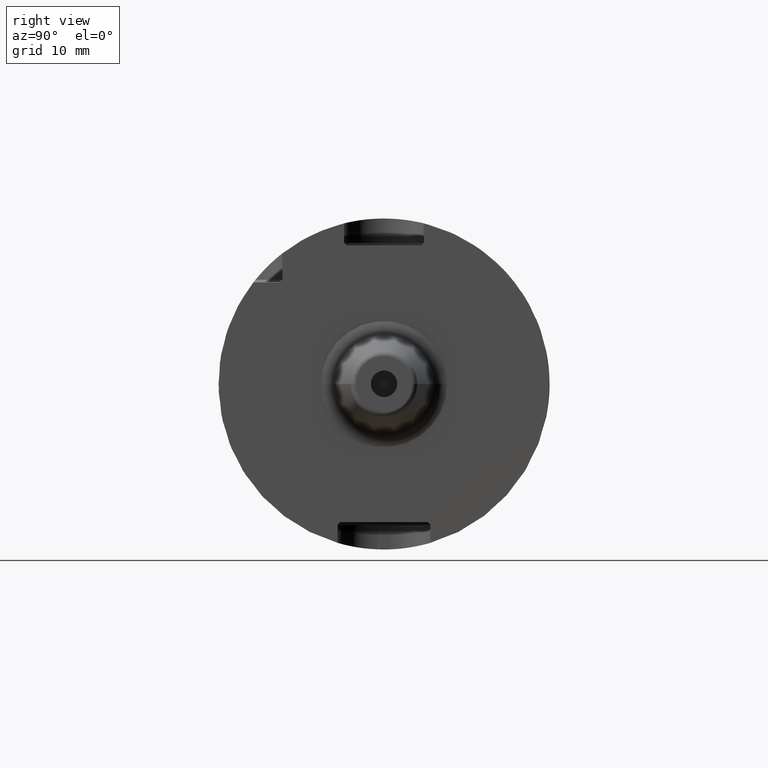
[diagram: clean part render]
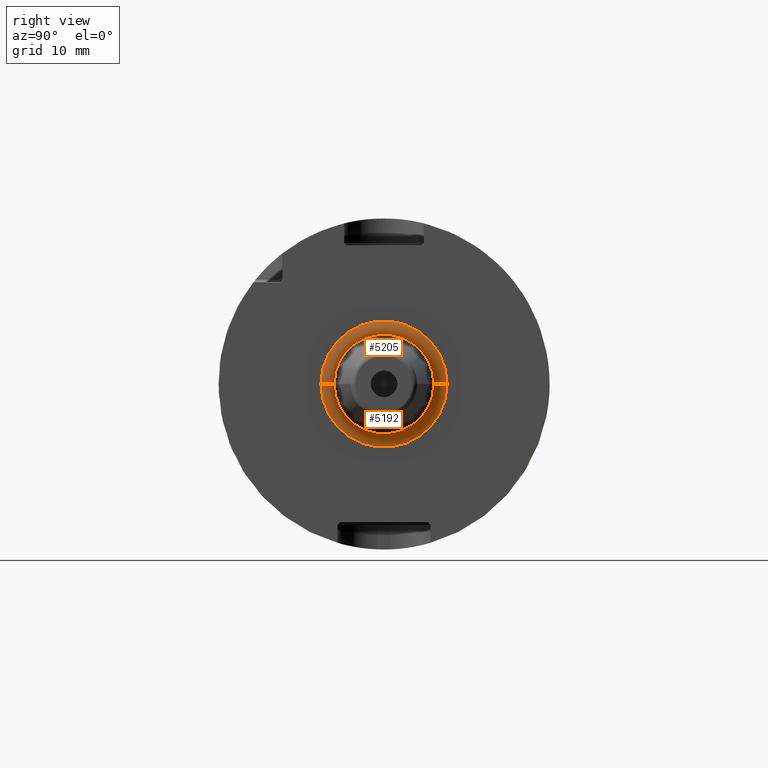
[diagram: same view with one multi-face feature highlighted, each face labeled with its STEP entity id]
A machine part, right view. The highlighted faces form ONE feature: a constant-radius fillet chain: 2 tangent blend faces with common blend radius 2 mm. The faces share edges in the B-rep.
Their STEP definitions:
[1] entity #5192 (Torus):
#1721=CARTESIAN_POINT('',(2.595E1,0.E0,0.E0));
#1722=DIRECTION('',(1.E0,0.E0,0.E0));
#1723=DIRECTION('',(0.E0,-1.E0,0.E0));
#1724=AXIS2_PLACEMENT_3D('',#1721,#1722,#1723);
#1892=CARTESIAN_POINT('',(2.795E1,-9.528574100695E0,1.346742162234E-12));
#1893=DIRECTION('',(0.E0,-1.413365952052E-13,-1.E0));
#1894=DIRECTION('',(-1.E0,8.171241461241E-14,0.E0));
#1895=AXIS2_PLACEMENT_3D('',#1892,#1893,#1894);
#1897=CARTESIAN_POINT('',(2.795E1,9.528574100695E0,-1.347907896410E-12));
#1898=DIRECTION('',(0.E0,1.414580258485E-13,1.E0));
#1899=DIRECTION('',(-1.E0,-8.171241461241E-14,0.E0));
#1900=AXIS2_PLACEMENT_3D('',#1897,#1898,#1899);
#1931=CARTESIAN_POINT('',(2.779308180854E1,0.E0,0.E0));
#1932=DIRECTION('',(1.E0,0.E0,0.E0));
#1933=DIRECTION('',(0.E0,-1.E0,0.E0));
#1934=AXIS2_PLACEMENT_3D('',#1931,#1932,#1933);
#3200=CARTESIAN_POINT('',(2.595E1,-9.528574100695E0,0.E0));
#3201=CARTESIAN_POINT('',(2.595E1,9.528574100695E0,0.E0));
#3202=VERTEX_POINT('',#3200);
#3203=VERTEX_POINT('',#3201);
#3204=CARTESIAN_POINT('',(2.779308180854E1,-7.534739433228E0,0.E0));
#3205=CARTESIAN_POINT('',(2.779308180854E1,7.534739433228E0,0.E0));
#3206=VERTEX_POINT('',#3204);
#3207=VERTEX_POINT('',#3205);
#5178=CARTESIAN_POINT('',(2.795E1,0.E0,0.E0));
#5179=DIRECTION('',(1.E0,0.E0,0.E0));
#5180=DIRECTION('',(0.E0,-9.999264686943E-1,1.212671450058E-2));
#5181=AXIS2_PLACEMENT_3D('',#5178,#5179,#5180);
#5182=TOROIDAL_SURFACE('',#5181,9.528574100695E0,2.E0);
#5183=ORIENTED_EDGE('',*,*,#5010,.F.);
#5185=ORIENTED_EDGE('',*,*,#5184,.T.);
#5187=ORIENTED_EDGE('',*,*,#5186,.T.);
#5189=ORIENTED_EDGE('',*,*,#5188,.F.);
#5190=EDGE_LOOP('',(#5183,#5185,#5187,#5189));
#5191=FACE_OUTER_BOUND('',#5190,.F.);
#5192=ADVANCED_FACE('',(#5191),#5182,.F.);
#1725=CIRCLE('',#1724,9.528574100695E0);
#1896=CIRCLE('',#1895,2.E0);
#1901=CIRCLE('',#1900,2.E0);
#1935=CIRCLE('',#1934,7.534739433228E0);
#5010=EDGE_CURVE('',#3202,#3203,#1725,.T.);
#5184=EDGE_CURVE('',#3202,#3206,#1896,.T.);
#5186=EDGE_CURVE('',#3206,#3207,#1935,.T.);
#5188=EDGE_CURVE('',#3203,#3207,#1901,.T.);
[2] entity #5205 (Torus):
#1726=CARTESIAN_POINT('',(2.595E1,0.E0,0.E0));
#1727=DIRECTION('',(1.E0,0.E0,0.E0));
#1728=DIRECTION('',(0.E0,1.E0,0.E0));
#1729=AXIS2_PLACEMENT_3D('',#1726,#1727,#1728);
#1892=CARTESIAN_POINT('',(2.795E1,-9.528574100695E0,1.346742162234E-12));
#1893=DIRECTION('',(0.E0,-1.413365952052E-13,-1.E0));
#1894=DIRECTION('',(-1.E0,8.171241461241E-14,0.E0));
#1895=AXIS2_PLACEMENT_3D('',#1892,#1893,#1894);
#1897=CARTESIAN_POINT('',(2.795E1,9.528574100695E0,-1.347907896410E-12));
#1898=DIRECTION('',(0.E0,1.414580258485E-13,1.E0));
#1899=DIRECTION('',(-1.E0,-8.171241461241E-14,0.E0));
#1900=AXIS2_PLACEMENT_3D('',#1897,#1898,#1899);
#1907=CARTESIAN_POINT('',(2.779308180854E1,0.E0,0.E0));
#1908=DIRECTION('',(1.E0,0.E0,0.E0));
#1909=DIRECTION('',(0.E0,1.E0,0.E0));
#1910=AXIS2_PLACEMENT_3D('',#1907,#1908,#1909);
#3200=CARTESIAN_POINT('',(2.595E1,-9.528574100695E0,0.E0));
#3201=CARTESIAN_POINT('',(2.595E1,9.528574100695E0,0.E0));
#3202=VERTEX_POINT('',#3200);
#3203=VERTEX_POINT('',#3201);
#3204=CARTESIAN_POINT('',(2.779308180854E1,-7.534739433228E0,0.E0));
#3205=CARTESIAN_POINT('',(2.779308180854E1,7.534739433228E0,0.E0));
#3206=VERTEX_POINT('',#3204);
#3207=VERTEX_POINT('',#3205);
#5193=CARTESIAN_POINT('',(2.795E1,0.E0,0.E0));
#5194=DIRECTION('',(1.E0,0.E0,0.E0));
#5195=DIRECTION('',(0.E0,9.999264686943E-1,-1.212671450058E-2));
#5196=AXIS2_PLACEMENT_3D('',#5193,#5194,#5195);
#5197=TOROIDAL_SURFACE('',#5196,9.528574100695E0,2.E0);
#5198=ORIENTED_EDGE('',*,*,#5012,.F.);
#5199=ORIENTED_EDGE('',*,*,#5188,.T.);
#5201=ORIENTED_EDGE('',*,*,#5200,.T.);
#5202=ORIENTED_EDGE('',*,*,#5184,.F.);
#5203=EDGE_LOOP('',(#5198,#5199,#5201,#5202));
#5204=FACE_OUTER_BOUND('',#5203,.F.);
#5205=ADVANCED_FACE('',(#5204),#5197,.F.);
#1730=CIRCLE('',#1729,9.528574100695E0);
#1896=CIRCLE('',#1895,2.E0);
#1901=CIRCLE('',#1900,2.E0);
#1911=CIRCLE('',#1910,7.534739433228E0);
#5012=EDGE_CURVE('',#3203,#3202,#1730,.T.);
#5184=EDGE_CURVE('',#3202,#3206,#1896,.T.);
#5188=EDGE_CURVE('',#3203,#3207,#1901,.T.);
#5200=EDGE_CURVE('',#3207,#3206,#1911,.T.);